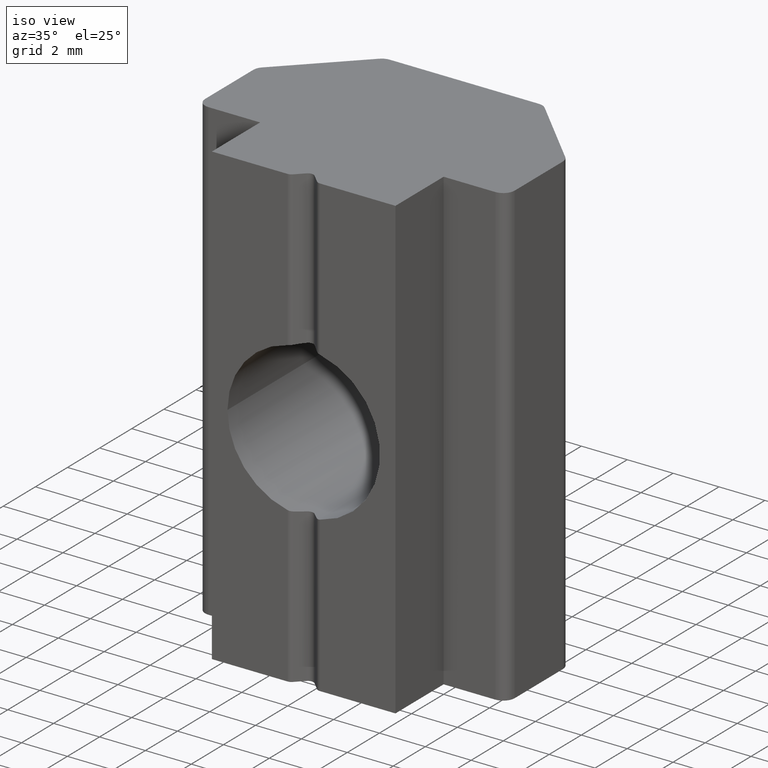
[diagram: clean part render]
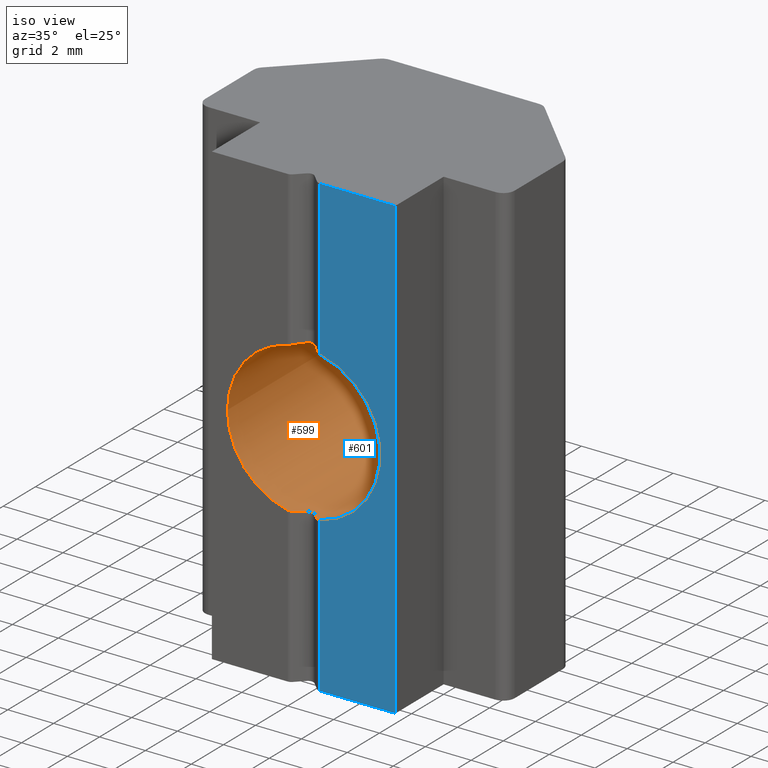
[diagram: same view with the hole feature highlighted: cylindrical wall and planar end face, labeled with their STEP entity ids]
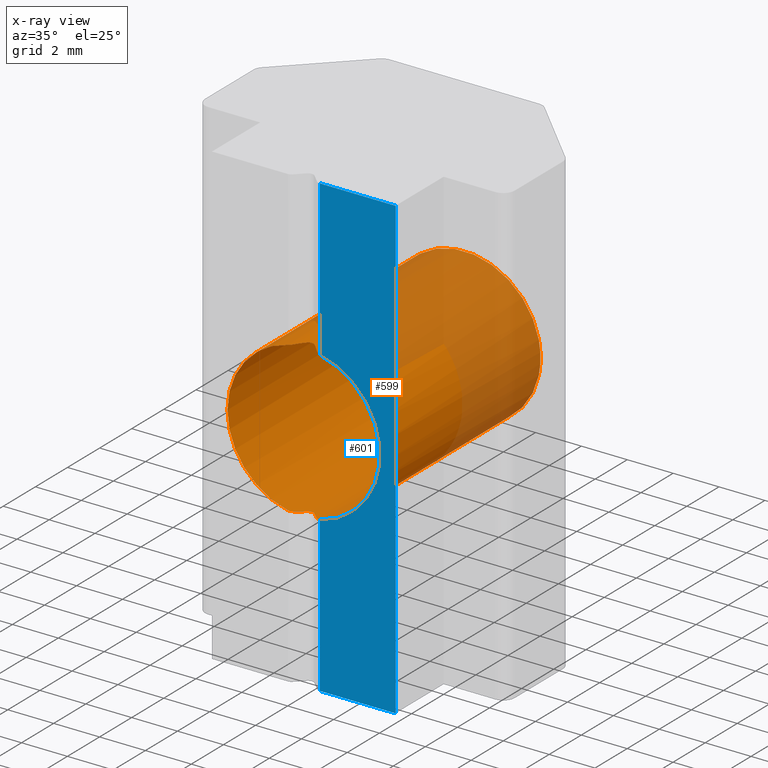
[diagram: x-ray of the same camera — body ghosted, the hole faces saturated]
A machine part, iso view. The highlighted faces form one hole feature of diameter 6.647 mm: the cylindrical wall (entity #599, orange) and its adjacent planar end face (entity #601, blue) — they share a circular edge in the B-rep.
The next image is the same camera in x-ray (body ghosted, the hole faces saturated) — the bore reads through the body.
Wall:
#33=FACE_OUTER_BOUND('',#64,.T.);
#64=EDGE_LOOP('',(#400,#401,#402,#403,#404,#405,#406,#407,#408,#409,#410,
#411,#412,#413,#414,#415,#416,#417,#418,#419));
#95=ELLIPSE('',#653,4.70013877454698,3.3235);
#96=ELLIPSE('',#654,4.700138774547,3.3235);
#97=ELLIPSE('',#656,4.700138774547,3.3235);
#98=ELLIPSE('',#657,4.70013877454698,3.3235);
#99=LINE('',#907,#156);
#156=VECTOR('',#714,3.3235);
#213=CIRCLE('',#651,3.3235);
#214=CIRCLE('',#652,3.3235);
#215=CIRCLE('',#655,3.3235);
#216=CIRCLE('',#658,3.3235);
#217=CIRCLE('',#659,3.3235);
#236=B_SPLINE_CURVE_WITH_KNOTS('',3,(#887,#888,#889,#890,#891,#892,#893,
#894,#895,#896),.UNSPECIFIED.,.F.,.F.,(4,2,2,2,4),(0.557830113279134,0.56436971978981,
0.623735461965952,0.683101204142094,0.68964081065277),.UNSPECIFIED.);
#237=B_SPLINE_CURVE_WITH_KNOTS('',3,(#900,#901,#902,#903,#904,#905),
 .UNSPECIFIED.,.F.,.F.,(4,2,4),(0.623735461965948,0.68310120414209,0.689640810652766),
 .UNSPECIFIED.);
#238=B_SPLINE_CURVE_WITH_KNOTS('',3,(#911,#912,#913,#914,#915,#916),
 .UNSPECIFIED.,.F.,.F.,(4,2,4),(0.0188806929850489,0.0283989010106326,0.0379905181382332),
 .UNSPECIFIED.);
#239=B_SPLINE_CURVE_WITH_KNOTS('',3,(#920,#921,#922,#923,#924,#925,#926,
#927,#928,#929),.UNSPECIFIED.,.F.,.F.,(4,2,2,2,4),(0.0188419814772389,0.0282629619908554,
0.0376839425044719,0.0471049230180884,0.056525903531705),.UNSPECIFIED.);
#240=B_SPLINE_CURVE_WITH_KNOTS('',3,(#933,#934,#935,#936,#937,#938),
 .UNSPECIFIED.,.F.,.F.,(4,2,4),(0.0382703114742954,0.0478619286018959,0.0573801366274796),
 .UNSPECIFIED.);
#241=B_SPLINE_CURVE_WITH_KNOTS('',3,(#942,#943,#944,#945,#946,#947),
 .UNSPECIFIED.,.F.,.F.,(4,2,4),(0.0951415408329882,0.104659748858572,0.114251365986172),
 .UNSPECIFIED.);
#242=B_SPLINE_CURVE_WITH_KNOTS('',3,(#951,#952,#953,#954,#955,#956,#957,
#958,#959,#960),.UNSPECIFIED.,.F.,.F.,(4,2,2,2,4),(0.0942098664861825,0.103630846999799,
0.113051827513416,0.122472808027032,0.131893788540649),.UNSPECIFIED.);
#243=B_SPLINE_CURVE_WITH_KNOTS('',3,(#964,#965,#966,#967,#968,#969),
 .UNSPECIFIED.,.F.,.F.,(4,2,4),(0.114531412718414,0.124123029846015,0.133641237871599),
 .UNSPECIFIED.);
#244=B_SPLINE_CURVE_WITH_KNOTS('',3,(#972,#973,#974,#975,#976,#977),
 .UNSPECIFIED.,.F.,.F.,(4,2,4),(0.557830113279131,0.564369719789807,0.623735461965948),
 .UNSPECIFIED.);
#245=VERTEX_POINT('',#885);
#246=VERTEX_POINT('',#886);
#247=VERTEX_POINT('',#897);
#248=VERTEX_POINT('',#899);
#249=VERTEX_POINT('',#906);
#250=VERTEX_POINT('',#908);
#251=VERTEX_POINT('',#910);
#252=VERTEX_POINT('',#917);
#253=VERTEX_POINT('',#919);
#254=VERTEX_POINT('',#930);
#255=VERTEX_POINT('',#932);
#256=VERTEX_POINT('',#939);
#257=VERTEX_POINT('',#941);
#258=VERTEX_POINT('',#948);
#259=VERTEX_POINT('',#950);
#260=VERTEX_POINT('',#961);
#261=VERTEX_POINT('',#963);
#262=VERTEX_POINT('',#971);
#307=EDGE_CURVE('',#245,#246,#236,.T.);
#308=EDGE_CURVE('',#247,#245,#213,.T.);
#309=EDGE_CURVE('',#248,#247,#237,.T.);
#310=EDGE_CURVE('',#248,#249,#99,.T.);
#311=EDGE_CURVE('',#250,#249,#214,.T.);
#312=EDGE_CURVE('',#251,#250,#238,.T.);
#313=EDGE_CURVE('',#252,#251,#95,.T.);
#314=EDGE_CURVE('',#253,#252,#239,.T.);
#315=EDGE_CURVE('',#254,#253,#96,.T.);
#316=EDGE_CURVE('',#255,#254,#240,.T.);
#317=EDGE_CURVE('',#256,#255,#215,.T.);
#318=EDGE_CURVE('',#257,#256,#241,.T.);
#319=EDGE_CURVE('',#258,#257,#97,.T.);
#320=EDGE_CURVE('',#259,#258,#242,.T.);
#321=EDGE_CURVE('',#260,#259,#98,.T.);
#322=EDGE_CURVE('',#261,#260,#243,.T.);
#323=EDGE_CURVE('',#249,#261,#216,.T.);
#324=EDGE_CURVE('',#262,#248,#244,.T.);
#325=EDGE_CURVE('',#246,#262,#217,.T.);
#400=ORIENTED_EDGE('',*,*,#307,.F.);
#401=ORIENTED_EDGE('',*,*,#308,.F.);
#402=ORIENTED_EDGE('',*,*,#309,.F.);
#403=ORIENTED_EDGE('',*,*,#310,.T.);
#404=ORIENTED_EDGE('',*,*,#311,.F.);
#405=ORIENTED_EDGE('',*,*,#312,.F.);
#406=ORIENTED_EDGE('',*,*,#313,.F.);
#407=ORIENTED_EDGE('',*,*,#314,.F.);
#408=ORIENTED_EDGE('',*,*,#315,.F.);
#409=ORIENTED_EDGE('',*,*,#316,.F.);
#410=ORIENTED_EDGE('',*,*,#317,.F.);
#411=ORIENTED_EDGE('',*,*,#318,.F.);
#412=ORIENTED_EDGE('',*,*,#319,.F.);
#413=ORIENTED_EDGE('',*,*,#320,.F.);
#414=ORIENTED_EDGE('',*,*,#321,.F.);
#415=ORIENTED_EDGE('',*,*,#322,.F.);
#416=ORIENTED_EDGE('',*,*,#323,.F.);
#417=ORIENTED_EDGE('',*,*,#310,.F.);
#418=ORIENTED_EDGE('',*,*,#324,.F.);
#419=ORIENTED_EDGE('',*,*,#325,.F.);
#586=CYLINDRICAL_SURFACE('',#650,3.3235);
#599=ADVANCED_FACE('',(#33),#586,.F.);
#650=AXIS2_PLACEMENT_3D('',#884,#710,#711);
#651=AXIS2_PLACEMENT_3D('',#898,#712,#713);
#652=AXIS2_PLACEMENT_3D('',#909,#715,#716);
#653=AXIS2_PLACEMENT_3D('',#918,#717,#718);
#654=AXIS2_PLACEMENT_3D('',#931,#719,#720);
#655=AXIS2_PLACEMENT_3D('',#940,#721,#722);
#656=AXIS2_PLACEMENT_3D('',#949,#723,#724);
#657=AXIS2_PLACEMENT_3D('',#962,#725,#726);
#658=AXIS2_PLACEMENT_3D('',#970,#727,#728);
#659=AXIS2_PLACEMENT_3D('',#978,#729,#730);
#710=DIRECTION('center_axis',(0.,1.,0.));
#711=DIRECTION('ref_axis',(1.,0.,0.));
#712=DIRECTION('center_axis',(0.,-1.,0.));
#713=DIRECTION('ref_axis',(1.,0.,0.));
#714=DIRECTION('',(0.,-1.,0.));
#715=DIRECTION('center_axis',(0.,1.,0.));
#716=DIRECTION('ref_axis',(1.,0.,0.));
#717=DIRECTION('center_axis',(-0.707106781186548,0.707106781186547,0.));
#718=DIRECTION('ref_axis',(0.707106781186547,0.707106781186548,0.));
#719=DIRECTION('center_axis',(0.70710678118655,0.707106781186546,0.));
#720=DIRECTION('ref_axis',(0.707106781186545,-0.707106781186549,0.));
#721=DIRECTION('center_axis',(0.,1.,0.));
#722=DIRECTION('ref_axis',(1.,0.,0.));
#723=DIRECTION('center_axis',(0.70710678118655,0.707106781186546,0.));
#724=DIRECTION('ref_axis',(0.707106781186545,-0.707106781186549,0.));
#725=DIRECTION('center_axis',(-0.707106781186548,0.707106781186547,0.));
#726=DIRECTION('ref_axis',(0.707106781186547,0.707106781186548,0.));
#727=DIRECTION('center_axis',(0.,1.,0.));
#728=DIRECTION('ref_axis',(1.,0.,0.));
#729=DIRECTION('center_axis',(0.,-1.,0.));
#730=DIRECTION('ref_axis',(1.,0.,0.));
#884=CARTESIAN_POINT('Origin',(0.,2.,0.));
#885=CARTESIAN_POINT('',(3.25,7.,-0.695091540734008));
#886=CARTESIAN_POINT('',(3.25,7.,0.695091540734008));
#887=CARTESIAN_POINT('Ctrl Pts',(3.25,7.,-0.695091540734008));
#888=CARTESIAN_POINT('Ctrl Pts',(3.25495410738024,7.,-0.671927902504751));
#889=CARTESIAN_POINT('Ctrl Pts',(3.2596662745921,6.99992649240912,-0.64868379283144));
#890=CARTESIAN_POINT('Ctrl Pts',(3.30464784896698,6.99865486662524,-0.413908282390586));
#891=CARTESIAN_POINT('Ctrl Pts',(3.3235,6.99456824604902,-0.197885807253807));
#892=CARTESIAN_POINT('Ctrl Pts',(3.3235,6.99456824604902,0.197885807253807));
#893=CARTESIAN_POINT('Ctrl Pts',(3.30464784896698,6.99865486662524,0.413908282390586));
#894=CARTESIAN_POINT('Ctrl Pts',(3.2596662745921,6.99992649240912,0.64868379283144));
#895=CARTESIAN_POINT('Ctrl Pts',(3.25495410738024,7.,0.671927902504751));
#896=CARTESIAN_POINT('Ctrl Pts',(3.25,7.,0.695091540734008));
#897=CARTESIAN_POINT('',(-3.25,7.,-0.695091540734006));
#898=CARTESIAN_POINT('Origin',(0.,7.,0.));
#899=CARTESIAN_POINT('',(-3.3235,6.99456824604901,1.51463977569007E-16));
#900=CARTESIAN_POINT('Ctrl Pts',(-3.3235,6.99456824604901,-3.46944695195361E-17));
#901=CARTESIAN_POINT('Ctrl Pts',(-3.3235,6.99456824604901,-0.197885807253806));
#902=CARTESIAN_POINT('Ctrl Pts',(-3.30464784896698,6.99865486662524,-0.413908282390584));
#903=CARTESIAN_POINT('Ctrl Pts',(-3.2596662745921,6.99992649240911,-0.648683792831436));
#904=CARTESIAN_POINT('Ctrl Pts',(-3.25495410738024,6.99999999999999,-0.67192790250475));
#905=CARTESIAN_POINT('Ctrl Pts',(-3.25,6.99999999999999,-0.695091540734006));
#906=CARTESIAN_POINT('',(-3.3235,-3.,4.07011363696623E-16));
#907=CARTESIAN_POINT('',(-3.3235,2.,4.07011363696623E-16));
#908=CARTESIAN_POINT('',(-0.707106781186547,-3.,-3.24740700405724));
#909=CARTESIAN_POINT('Origin',(0.,-3.,0.));
#910=CARTESIAN_POINT('',(-0.53033008588991,-2.92677669529664,-3.28091484955035));
#911=CARTESIAN_POINT('Ctrl Pts',(-0.53033008588991,-2.92677669529664,-3.28091484955035));
#912=CARTESIAN_POINT('Ctrl Pts',(-0.552641806065455,-2.94908841547218,-3.27730836263446));
#913=CARTESIAN_POINT('Ctrl Pts',(-0.58078606019833,-2.96827884178904,-3.27250882120306));
#914=CARTESIAN_POINT('Ctrl Pts',(-0.642380869093924,-2.99378311246443,-3.26097965900671));
#915=CARTESIAN_POINT('Ctrl Pts',(-0.67586673841998,-3.,-3.25420936854595));
#916=CARTESIAN_POINT('Ctrl Pts',(-0.707106781186547,-3.,-3.24740700405724));
#917=CARTESIAN_POINT('',(-0.176776695296637,-2.57322330470336,-3.31879530100909));
#918=CARTESIAN_POINT('Origin',(0.,-2.39644660940673,0.));
#919=CARTESIAN_POINT('',(0.176776695296638,-2.57322330470336,-3.31879530100909));
#920=CARTESIAN_POINT('Ctrl Pts',(0.176776695296637,-2.57322330470336,-3.31879530100909));
#921=CARTESIAN_POINT('Ctrl Pts',(0.154586964841254,-2.55103357424798,-3.31997724411303));
#922=CARTESIAN_POINT('Ctrl Pts',(0.126482992460306,-2.53179549282079,-3.32123523150594));
#923=CARTESIAN_POINT('Ctrl Pts',(0.0648916428786962,-2.50627837785888,-3.32300925142429));
#924=CARTESIAN_POINT('Ctrl Pts',(0.0314032683787217,-2.5,-3.3235));
#925=CARTESIAN_POINT('Ctrl Pts',(-0.0314032683787218,-2.5,-3.3235));
#926=CARTESIAN_POINT('Ctrl Pts',(-0.0648916428786965,-2.50627837785888,
-3.32300925142429));
#927=CARTESIAN_POINT('Ctrl Pts',(-0.126482992460306,-2.53179549282079,-3.32123523150595));
#928=CARTESIAN_POINT('Ctrl Pts',(-0.154586964841255,-2.55103357424798,-3.31997724411303));
#929=CARTESIAN_POINT('Ctrl Pts',(-0.176776695296637,-2.57322330470336,-3.31879530100909));
#930=CARTESIAN_POINT('',(0.530330085889911,-2.92677669529664,-3.28091484955035));
#931=CARTESIAN_POINT('Origin',(0.,-2.39644660940672,0.));
#932=CARTESIAN_POINT('',(0.707106781186547,-3.,-3.24740700405724));
#933=CARTESIAN_POINT('Ctrl Pts',(0.707106781186547,-3.,-3.24740700405724));
#934=CARTESIAN_POINT('Ctrl Pts',(0.675866738419981,-3.,-3.25420936854595));
#935=CARTESIAN_POINT('Ctrl Pts',(0.642380869093925,-2.99378311246443,-3.26097965900671));
#936=CARTESIAN_POINT('Ctrl Pts',(0.58078606019833,-2.96827884178904,-3.27250882120306));
#937=CARTESIAN_POINT('Ctrl Pts',(0.552641806065455,-2.94908841547218,-3.27730836263446));
#938=CARTESIAN_POINT('Ctrl Pts',(0.53033008588991,-2.92677669529664,-3.28091484955035));
#939=CARTESIAN_POINT('',(0.707106781186547,-3.,3.24740700405724));
#940=CARTESIAN_POINT('Origin',(0.,-3.,0.));
#941=CARTESIAN_POINT('',(0.530330085889911,-2.92677669529664,3.28091484955035));
#942=CARTESIAN_POINT('Ctrl Pts',(0.53033008588991,-2.92677669529664,3.28091484955035));
#943=CARTESIAN_POINT('Ctrl Pts',(0.552641806065455,-2.94908841547218,3.27730836263446));
#944=CARTESIAN_POINT('Ctrl Pts',(0.58078606019833,-2.96827884178904,3.27250882120306));
#945=CARTESIAN_POINT('Ctrl Pts',(0.642380869093925,-2.99378311246443,3.26097965900671));
#946=CARTESIAN_POINT('Ctrl Pts',(0.675866738419981,-3.,3.25420936854595));
#947=CARTESIAN_POINT('Ctrl Pts',(0.707106781186547,-3.,3.24740700405724));
#948=CARTESIAN_POINT('',(0.176776695296638,-2.57322330470336,3.31879530100909));
#949=CARTESIAN_POINT('Origin',(0.,-2.39644660940672,0.));
#950=CARTESIAN_POINT('',(-0.176776695296637,-2.57322330470336,3.31879530100909));
#951=CARTESIAN_POINT('Ctrl Pts',(-0.176776695296637,-2.57322330470336,3.31879530100909));
#952=CARTESIAN_POINT('Ctrl Pts',(-0.154586964841255,-2.55103357424798,3.31997724411303));
#953=CARTESIAN_POINT('Ctrl Pts',(-0.126482992460306,-2.53179549282079,3.32123523150594));
#954=CARTESIAN_POINT('Ctrl Pts',(-0.0648916428786965,-2.50627837785888,
3.32300925142429));
#955=CARTESIAN_POINT('Ctrl Pts',(-0.0314032683787218,-2.5,3.3235));
#956=CARTESIAN_POINT('Ctrl Pts',(0.0314032683787217,-2.5,3.3235));
#957=CARTESIAN_POINT('Ctrl Pts',(0.0648916428786963,-2.50627837785888,3.32300925142429));
#958=CARTESIAN_POINT('Ctrl Pts',(0.126482992460306,-2.53179549282079,3.32123523150594));
#959=CARTESIAN_POINT('Ctrl Pts',(0.154586964841254,-2.55103357424798,3.31997724411303));
#960=CARTESIAN_POINT('Ctrl Pts',(0.176776695296637,-2.57322330470336,3.31879530100909));
#961=CARTESIAN_POINT('',(-0.53033008588991,-2.92677669529664,3.28091484955035));
#962=CARTESIAN_POINT('Origin',(0.,-2.39644660940673,0.));
#963=CARTESIAN_POINT('',(-0.707106781186547,-3.,3.24740700405724));
#964=CARTESIAN_POINT('Ctrl Pts',(-0.707106781186547,-3.,3.24740700405724));
#965=CARTESIAN_POINT('Ctrl Pts',(-0.67586673841998,-3.,3.25420936854595));
#966=CARTESIAN_POINT('Ctrl Pts',(-0.642380869093924,-2.99378311246443,3.26097965900671));
#967=CARTESIAN_POINT('Ctrl Pts',(-0.58078606019833,-2.96827884178904,3.27250882120306));
#968=CARTESIAN_POINT('Ctrl Pts',(-0.552641806065454,-2.94908841547218,3.27730836263446));
#969=CARTESIAN_POINT('Ctrl Pts',(-0.53033008588991,-2.92677669529664,3.28091484955035));
#970=CARTESIAN_POINT('Origin',(0.,-3.,0.));
#971=CARTESIAN_POINT('',(-3.25,7.,0.695091540734006));
#972=CARTESIAN_POINT('Ctrl Pts',(-3.25,6.99999999999999,0.695091540734006));
#973=CARTESIAN_POINT('Ctrl Pts',(-3.25495410738024,6.99999999999999,0.67192790250475));
#974=CARTESIAN_POINT('Ctrl Pts',(-3.2596662745921,6.99992649240911,0.648683792831436));
#975=CARTESIAN_POINT('Ctrl Pts',(-3.30464784896698,6.99865486662524,0.413908282390584));
#976=CARTESIAN_POINT('Ctrl Pts',(-3.3235,6.99456824604901,0.197885807253806));
#977=CARTESIAN_POINT('Ctrl Pts',(-3.3235,6.99456824604901,0.));
#978=CARTESIAN_POINT('Origin',(0.,7.,0.));
End face:
#15=PLANE('',#662);
#35=FACE_OUTER_BOUND('',#66,.T.);
#66=EDGE_LOOP('',(#424,#425,#426,#427,#428,#429));
#102=LINE('',#987,#159);
#103=LINE('',#989,#160);
#104=LINE('',#991,#161);
#105=LINE('',#993,#162);
#106=LINE('',#994,#163);
#159=VECTOR('',#739,10.);
#160=VECTOR('',#740,10.);
#161=VECTOR('',#741,10.);
#162=VECTOR('',#742,10.);
#163=VECTOR('',#743,10.);
#215=CIRCLE('',#655,3.3235);
#255=VERTEX_POINT('',#932);
#256=VERTEX_POINT('',#939);
#265=VERTEX_POINT('',#986);
#266=VERTEX_POINT('',#988);
#267=VERTEX_POINT('',#990);
#268=VERTEX_POINT('',#992);
#317=EDGE_CURVE('',#256,#255,#215,.T.);
#329=EDGE_CURVE('',#255,#265,#102,.T.);
#330=EDGE_CURVE('',#266,#265,#103,.T.);
#331=EDGE_CURVE('',#266,#267,#104,.T.);
#332=EDGE_CURVE('',#268,#267,#105,.T.);
#333=EDGE_CURVE('',#268,#256,#106,.T.);
#424=ORIENTED_EDGE('',*,*,#317,.T.);
#425=ORIENTED_EDGE('',*,*,#329,.T.);
#426=ORIENTED_EDGE('',*,*,#330,.F.);
#427=ORIENTED_EDGE('',*,*,#331,.T.);
#428=ORIENTED_EDGE('',*,*,#332,.F.);
#429=ORIENTED_EDGE('',*,*,#333,.T.);
#601=ADVANCED_FACE('',(#35),#15,.T.);
#655=AXIS2_PLACEMENT_3D('',#940,#721,#722);
#662=AXIS2_PLACEMENT_3D('',#985,#737,#738);
#721=DIRECTION('center_axis',(0.,1.,0.));
#722=DIRECTION('ref_axis',(1.,0.,0.));
#737=DIRECTION('center_axis',(0.,-1.,0.));
#738=DIRECTION('ref_axis',(1.,0.,0.));
#739=DIRECTION('',(0.,0.,-1.));
#740=DIRECTION('',(-1.,0.,0.));
#741=DIRECTION('',(0.,0.,1.));
#742=DIRECTION('',(1.,0.,0.));
#743=DIRECTION('',(0.,0.,-1.));
#932=CARTESIAN_POINT('',(0.707106781186547,-3.,-3.24740700405724));
#939=CARTESIAN_POINT('',(0.707106781186547,-3.,3.24740700405724));
#940=CARTESIAN_POINT('Origin',(0.,-3.,0.));
#985=CARTESIAN_POINT('Origin',(-4.,-3.,0.));
#986=CARTESIAN_POINT('',(0.707106781186547,-3.,-10.));
#987=CARTESIAN_POINT('',(0.707106781186547,-3.,0.));
#988=CARTESIAN_POINT('',(4.,-3.,-10.));
#989=CARTESIAN_POINT('',(-4.,-3.,-10.));
#990=CARTESIAN_POINT('',(4.,-3.,10.));
#991=CARTESIAN_POINT('',(4.,-3.,0.));
#992=CARTESIAN_POINT('',(0.707106781186547,-3.,10.));
#993=CARTESIAN_POINT('',(-4.,-3.,10.));
#994=CARTESIAN_POINT('',(0.707106781186547,-3.,0.));